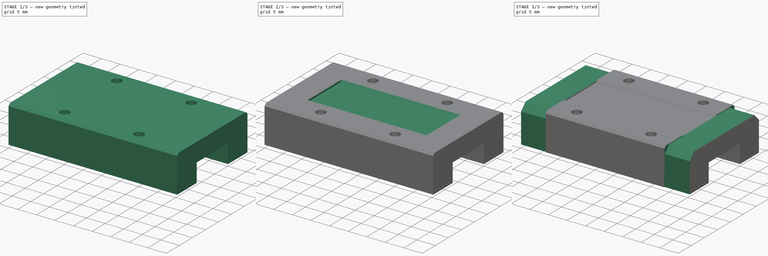
[diagram: build sequence overview — one tinted view per stage of 3, left to right]
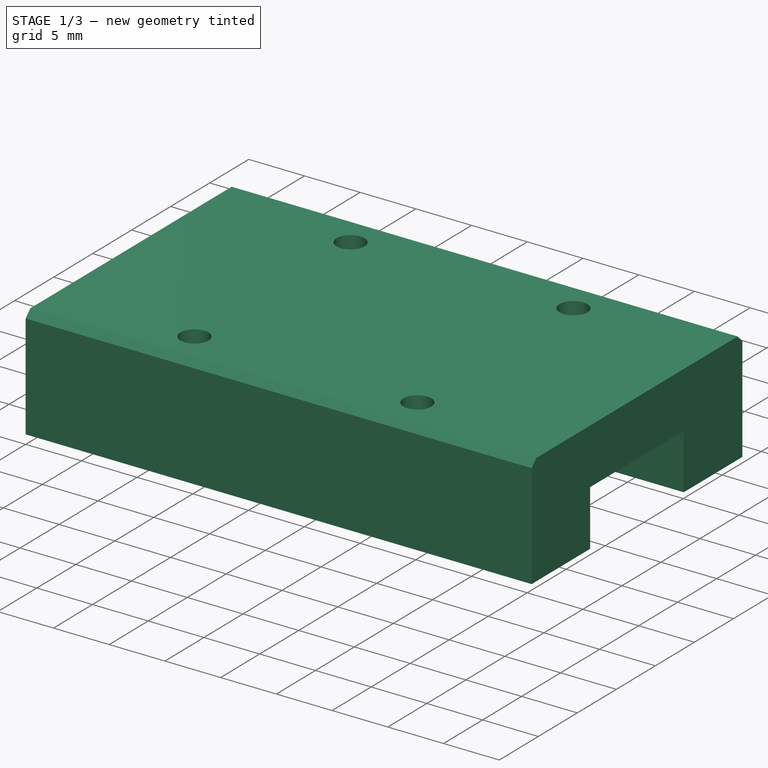
[diagram: stage 1 of 3 — iso view after this stage's code; geometry added in this stage tinted green]
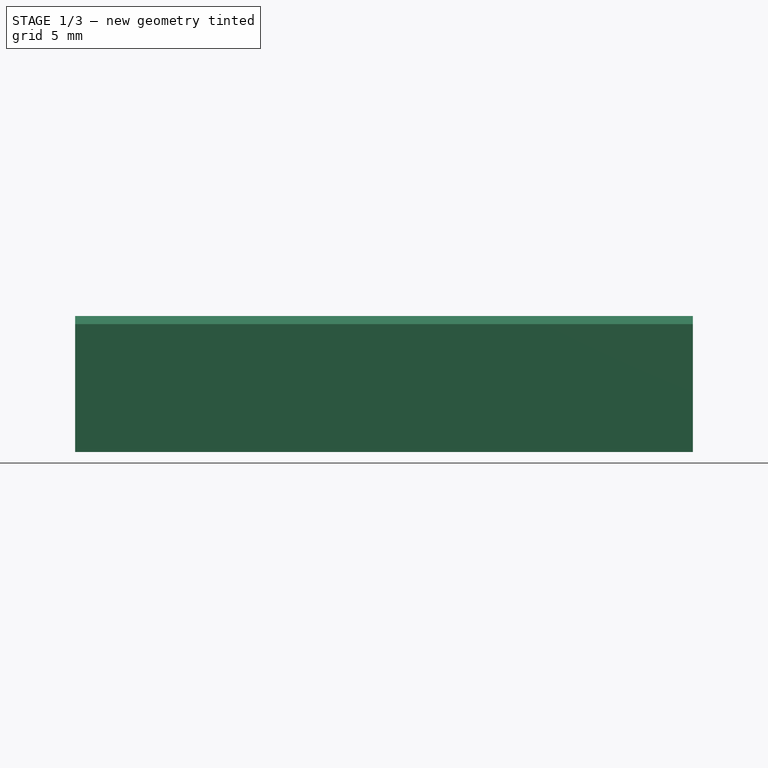
[diagram: stage 1 of 3 — front view after this stage's code; geometry added in this stage tinted green]
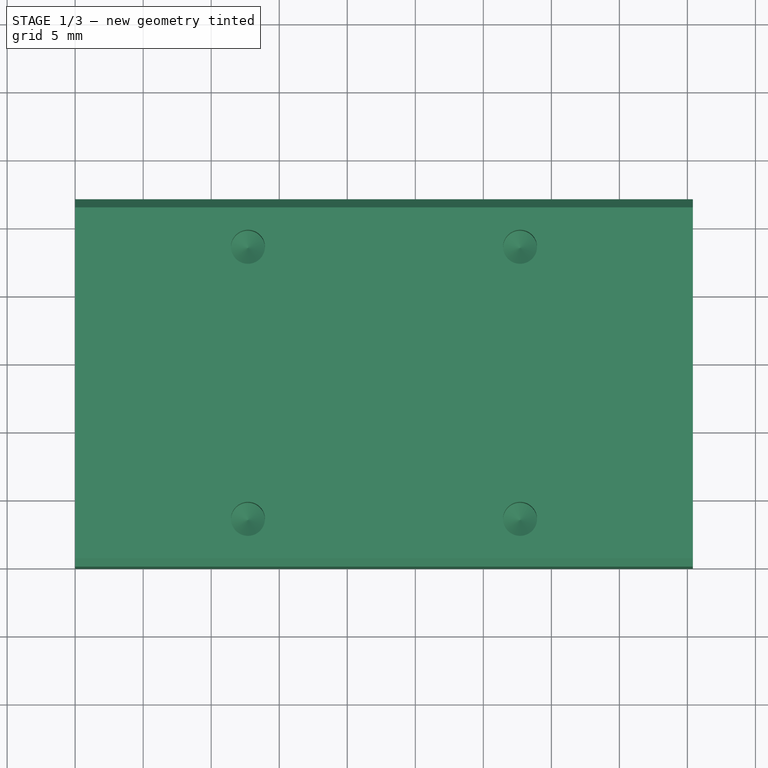
[diagram: stage 1 of 3 — top view after this stage's code; geometry added in this stage tinted green]
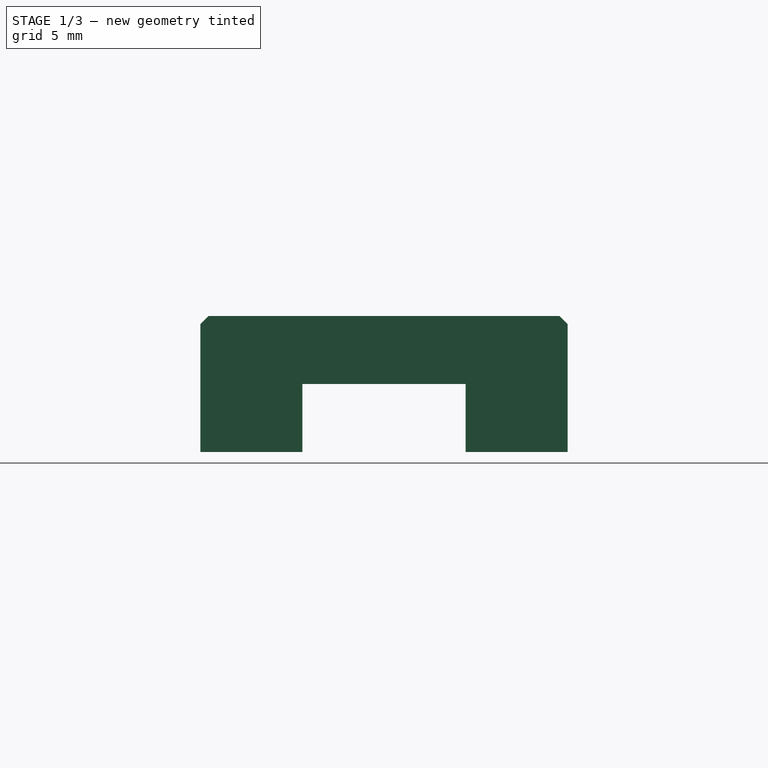
[diagram: stage 1 of 3 — right view after this stage's code; geometry added in this stage tinted green]
FCSTD DOCUMENT  (FreeCAD 0.18R4 (GitTag))
Label: Block MGN12H
License: All rights reserved
LicenseURL: http://en.wikipedia.org/wiki/All_rights_reserved
objects: Sketcher::SketchObject×4, PartDesign::Pocket×2, PartDesign::Pad×1, PartDesign::Hole×1, PartDesign::Chamfer×1, PartDesign::Point×1, PartDesign::Plane×1, PartDesign::Mirrored×1, PartDesign::Body×1
note: 17 computed .brp shape members not serialized (recipe doc carries the construction recipe); baked Part::Feature solids carry a one-line shape summary decoded from their .brp

FEATURE [Sketcher::SketchObject] Sketch
  MapMode = 5
  Placement = pos=(0,0,0) rot=(0.57735,0.57735,0.57735;2.0944rad)
  Support = -> [YZ_Plane]
  sketch-geometry (10):
    g0: LineSegment StartX=0 StartY=0 StartZ=0 EndX=0 EndY=9.4 EndZ=0
    g1: LineSegment StartX=0 StartY=9.4 StartZ=0 EndX=0.6 EndY=10 EndZ=0
    g2: LineSegment StartX=0.6 StartY=10 StartZ=0 EndX=26.4 EndY=10 EndZ=0
    g3: LineSegment StartX=26.4 StartY=10 StartZ=0 EndX=27 EndY=9.4 EndZ=0
    g4: LineSegment StartX=27 StartY=9.4 StartZ=0 EndX=27 EndY=0 EndZ=0
    g5: LineSegment StartX=0 StartY=0 StartZ=0 EndX=7.5 EndY=0 EndZ=0
    g6: LineSegment StartX=7.5 StartY=0 StartZ=0 EndX=7.5 EndY=5 EndZ=0
    g7: LineSegment StartX=7.5 StartY=5 StartZ=0 EndX=19.5 EndY=5 EndZ=0
    g8: LineSegment StartX=27 StartY=0 StartZ=0 EndX=19.5 EndY=0 EndZ=0
    g9: LineSegment StartX=19.5 StartY=0 StartZ=0 EndX=19.5 EndY=5 EndZ=0
  constraints (29):
    c: Coincident(g-1,g0)
    c: PointOnObject(g0,g-2)
    c: Coincident(g0,g1)
    c: Coincident(g1,g2)
    c: Horizontal(g2)
    c: Coincident(g2,g3)
    c: Coincident(g3,g4)
    c: PointOnObject(g4,g-1)
    c: Vertical(g4)
    c: Coincident(g-1,g5)
    c: Horizontal(g5)
    c: Coincident(g5,g6)
    c: Vertical(g6)
    c: Coincident(g6,g7)
    c: Horizontal(g7)
    c: Coincident(g4,g8)
    c: PointOnObject(g8,g-1)
    c: Coincident(g8,g9)
    c: Coincident(g9,g7)
    c: Vertical(g9)
    c: Angle(g5,g1) = 0.785398
    c: Perpendicular(g3,g1)
    c: Distance(g-1,g4) = 27
    c: Distance(g3,g2) = 0.6
    c: Distance(g-1,g2) = 10
    c: Distance(g5) = 7.5
    c: Distance(g8) = 7.5
    c: Horizontal(g3,g0)
    c: Distance(g6) = 5
FEATURE [PartDesign::Pad] Pad
  Length = 45.4
  Length2 = 100
  Placement = pos=(0,0,0) rot=(0.57735,0.57735,0.57735;2.0944rad)
  Profile = -> Sketch
  Type = 0
FEATURE [Sketcher::SketchObject] Sketch001
  ExternalGeometry = -> [Pad]
  MapMode = 5
  Placement = pos=(-2.8e-15,4.4e-15,10) rot=(0,0,-1;1.5708rad)
  Support = -> [Pad]
  sketch-geometry (9):
    g0: Circle CenterX=-23.5 CenterY=32.7 CenterZ=0 NormalX=0 NormalY=0 NormalZ=1 AngleXU=0 Radius=1.5
    g1: Circle CenterX=-3.5 CenterY=32.7 CenterZ=0 NormalX=0 NormalY=0 NormalZ=1 AngleXU=0 Radius=1.5
    g2: Circle CenterX=-3.5 CenterY=12.7 CenterZ=0 NormalX=0 NormalY=0 NormalZ=1 AngleXU=0 Radius=1.5
    g3: Circle CenterX=-23.5 CenterY=12.7 CenterZ=0 NormalX=0 NormalY=0 NormalZ=1 AngleXU=0 Radius=1.5
    g4: LineSegment [constr] StartX=-23.5 StartY=32.7 StartZ=0 EndX=-3.5 EndY=12.7 EndZ=0
    g5: LineSegment [constr] StartX=-3.5 StartY=32.7 StartZ=0 EndX=-23.5 EndY=12.7 EndZ=0
    g6: LineSegment [constr] StartX=-27 StartY=45.4 StartZ=0 EndX=0 EndY=0 EndZ=0
    g7: LineSegment [constr] StartX=0 StartY=45.4 StartZ=0 EndX=-27 EndY=0 EndZ=0
    g8: GeomPoint X=-13.5 Y=22.7 Z=0
  constraints (22):
    c: Horizontal(g2,g3)
    c: Horizontal(g1,g0)
    c: Vertical(g1,g2)
    c: Vertical(g0,g3)
    c: Radius(g2) = 1.5
    c: Equal(g2,g3)
    c: Equal(g3,g0)
    c: Equal(g0,g1)
    c: Distance(g2,g3) = 20
    c: Distance(g3,g0) = 20
    c: Coincident(g4,g0)
    c: Coincident(g4,g2)
    c: Coincident(g5,g1)
    c: Coincident(g5,g3)
    c: Coincident(g6,g-3)
    c: Coincident(g6,g-1)
    c: Coincident(g7,g-4)
    c: Coincident(g7,g-3)
    c: PointOnObject(g8,g7)
    c: PointOnObject(g8,g5)
    c: PointOnObject(g8,g6)
    c: PointOnObject(g8,g4)
FEATURE [PartDesign::Hole] Hole
  BaseFeature = -> Pad
  Depth = 4.8
  DepthType = 0
  Diameter = 2.5
  DrillPoint = 1
  DrillPointAngle = 118
  HoleCutCountersinkAngle = 90
  HoleCutDepth = 0
  HoleCutDiameter = 3
  HoleCutType = 0
  ModelActualThread = false
  Placement = pos=(0,0,0) rot=(0.57735,0.57735,0.57735;2.0944rad)
  Profile = -> Sketch001
  Tapered = false
  TaperedAngle = 90
  ThreadAngle = 60
  ThreadClass = 0
  ThreadCutOffInner = 0.0541266
  ThreadCutOffOuter = 0.108253
  ThreadDirection = 1
  ThreadFit = 0
  ThreadPitch = 0.5
  ThreadSize = 3
  ThreadType = 1
  Threaded = true
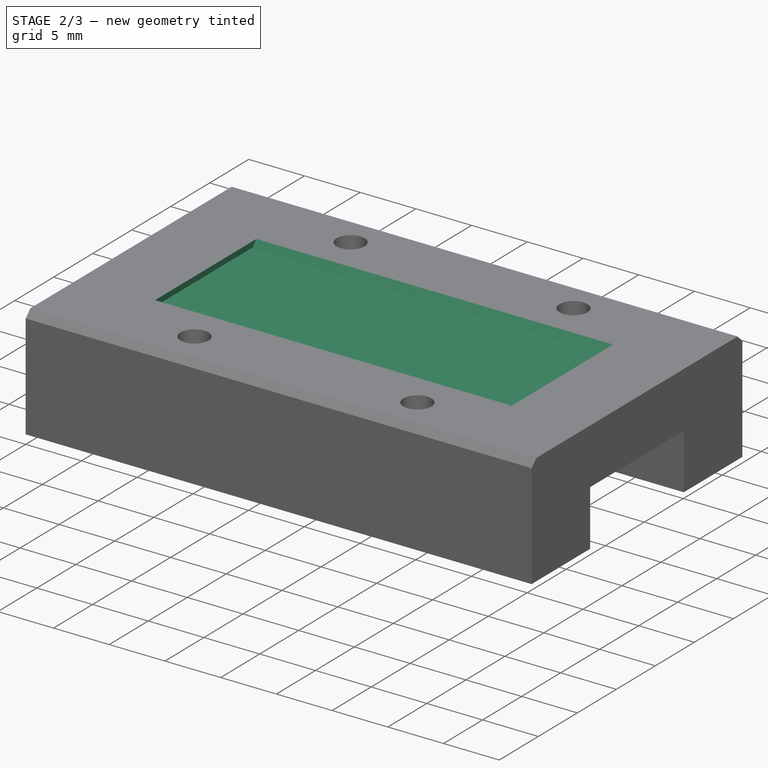
[diagram: stage 2 of 3 — iso view after this stage's code; geometry added in this stage tinted green]
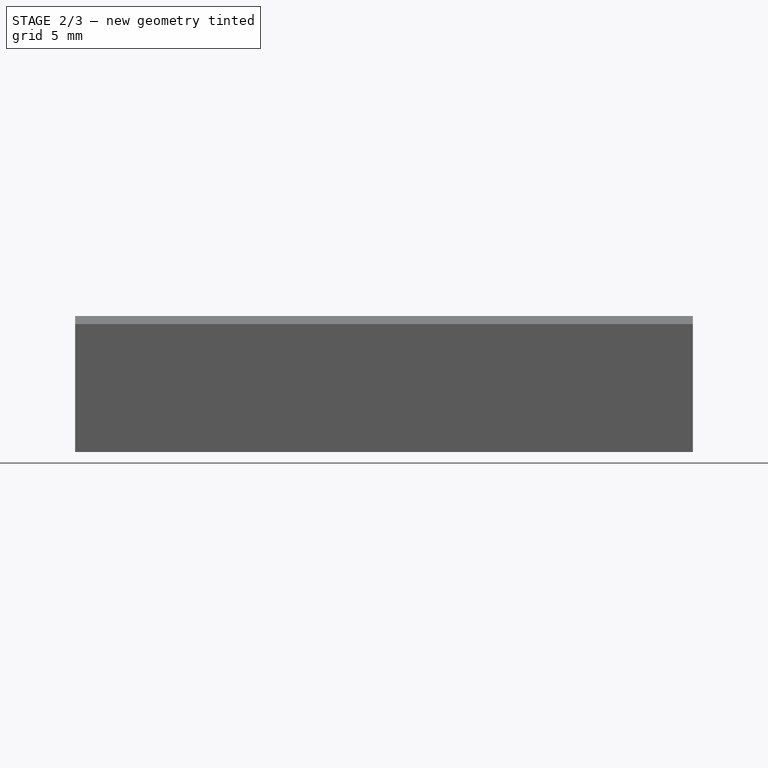
[diagram: stage 2 of 3 — front view after this stage's code; geometry added in this stage tinted green]
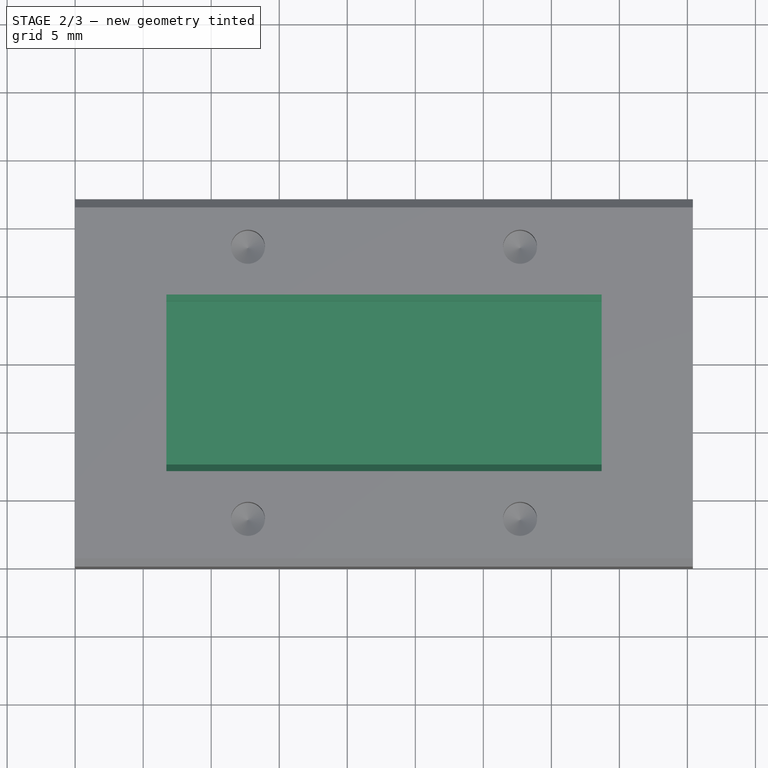
[diagram: stage 2 of 3 — top view after this stage's code; geometry added in this stage tinted green]
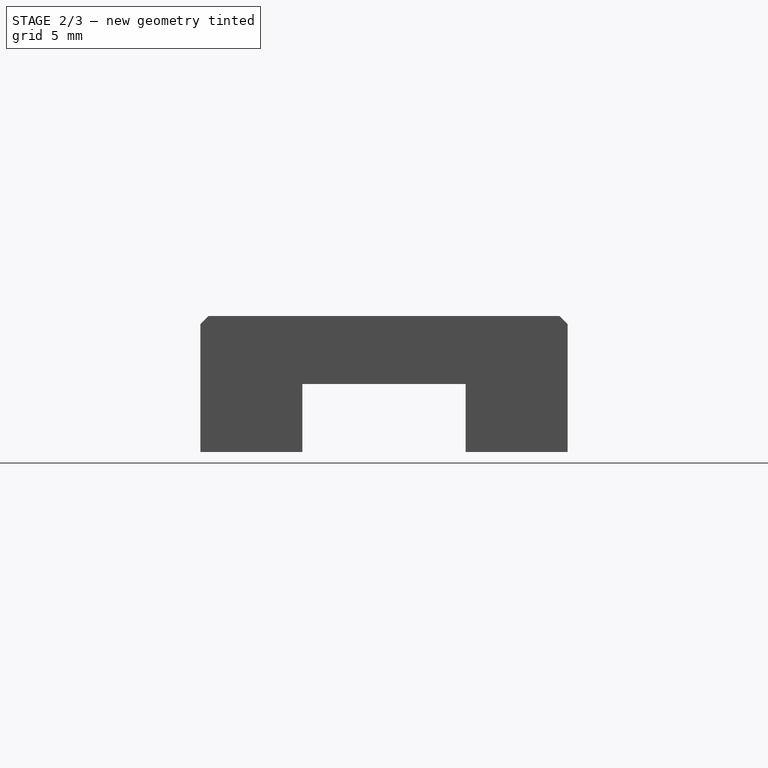
[diagram: stage 2 of 3 — right view after this stage's code; geometry added in this stage tinted green]
FEATURE [Sketcher::SketchObject] Sketch002
  ExternalGeometry = -> [Hole]
  MapMode = 5
  Placement = pos=(-2.8e-15,4.4e-15,10) rot=(0,0,-1;1.5708rad)
  Support = -> [Hole]
  sketch-geometry (8):
    g0: LineSegment StartX=-19.5 StartY=38.7 StartZ=0 EndX=-7.5 EndY=38.7 EndZ=0
    g1: LineSegment StartX=-7.5 StartY=38.7 StartZ=0 EndX=-7.5 EndY=6.7 EndZ=0
    g2: LineSegment StartX=-7.5 StartY=6.7 StartZ=0 EndX=-19.5 EndY=6.7 EndZ=0
    g3: LineSegment StartX=-19.5 StartY=6.7 StartZ=0 EndX=-19.5 EndY=38.7 EndZ=0
    g4: LineSegment [constr] StartX=-19.5 StartY=38.7 StartZ=0 EndX=-27 EndY=38.7 EndZ=0
    g5: LineSegment [constr] StartX=-19.5 StartY=38.7 StartZ=0 EndX=-19.5 EndY=45.4 EndZ=0
    g6: LineSegment [constr] StartX=-7.5 StartY=6.7 StartZ=0 EndX=-7.5 EndY=0 EndZ=0
    g7: LineSegment [constr] StartX=-7.5 StartY=6.7 StartZ=0 EndX=0 EndY=6.7 EndZ=0
  constraints (24):
    c: Coincident(g0,g1)
    c: Coincident(g1,g2)
    c: Coincident(g2,g3)
    c: Coincident(g3,g0)
    c: Horizontal(g0)
    c: Horizontal(g2)
    c: Vertical(g1)
    c: Vertical(g3)
    c: Distance(g1) = 32
    c: Distance(g2) = 12
    c: Coincident(g4,g0)
    c: PointOnObject(g4,g-3)
    c: Horizontal(g4)
    c: Coincident(g5,g0)
    c: PointOnObject(g5,g-4)
    c: Vertical(g5)
    c: Coincident(g6,g1)
    c: PointOnObject(g6,g-1)
    c: Vertical(g6)
    c: Coincident(g7,g1)
    c: PointOnObject(g7,g-2)
    c: Horizontal(g7)
    c: Equal(g6,g5)
    c: Equal(g7,g4)
FEATURE [PartDesign::Pocket] Pocket
  BaseFeature = -> Hole
  Length = 0.5
  Length2 = 100
  Placement = pos=(0,0,0) rot=(0.57735,0.57735,0.57735;2.0944rad)
  Profile = -> Sketch002
  Type = 0
FEATURE [PartDesign::Chamfer] Chamfer
  Base = -> Pocket [Edge31,Edge29]
  BaseFeature = -> Pocket
  Placement = pos=(0,0,0) rot=(0.57735,0.57735,0.57735;2.0944rad)
  Size = 0.49
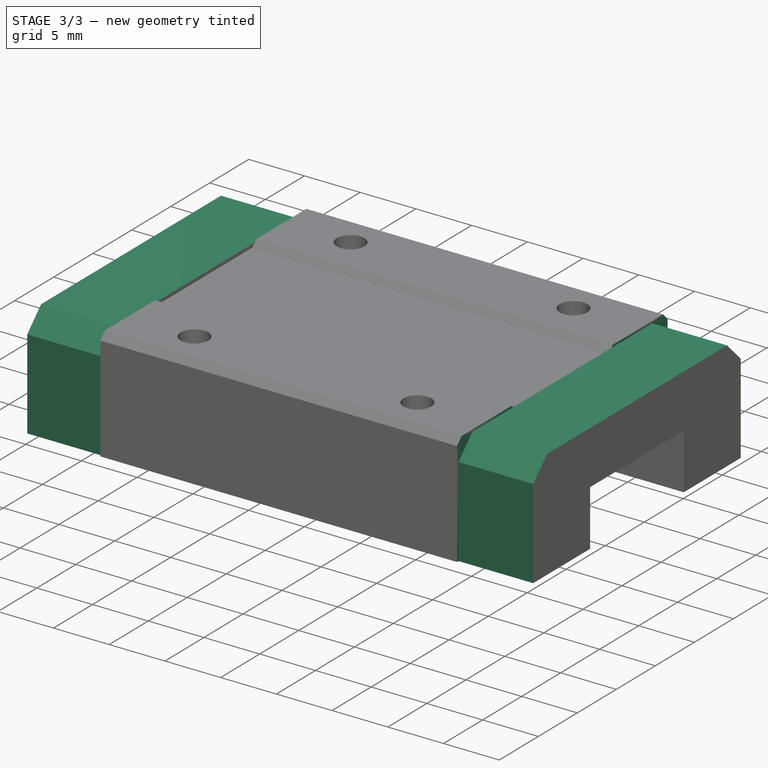
[diagram: stage 3 of 3 — iso view after this stage's code; geometry added in this stage tinted green]
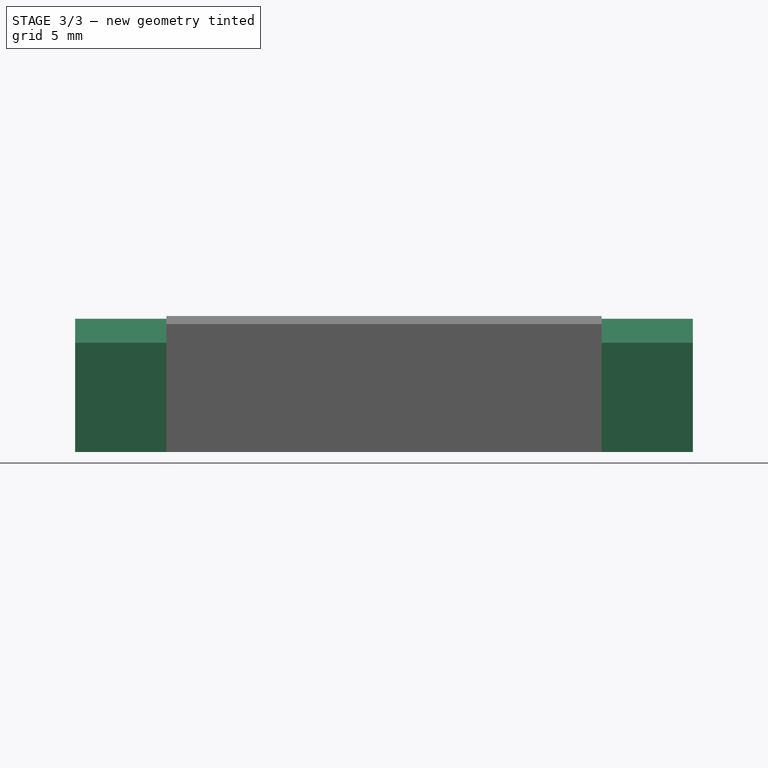
[diagram: stage 3 of 3 — front view after this stage's code; geometry added in this stage tinted green]
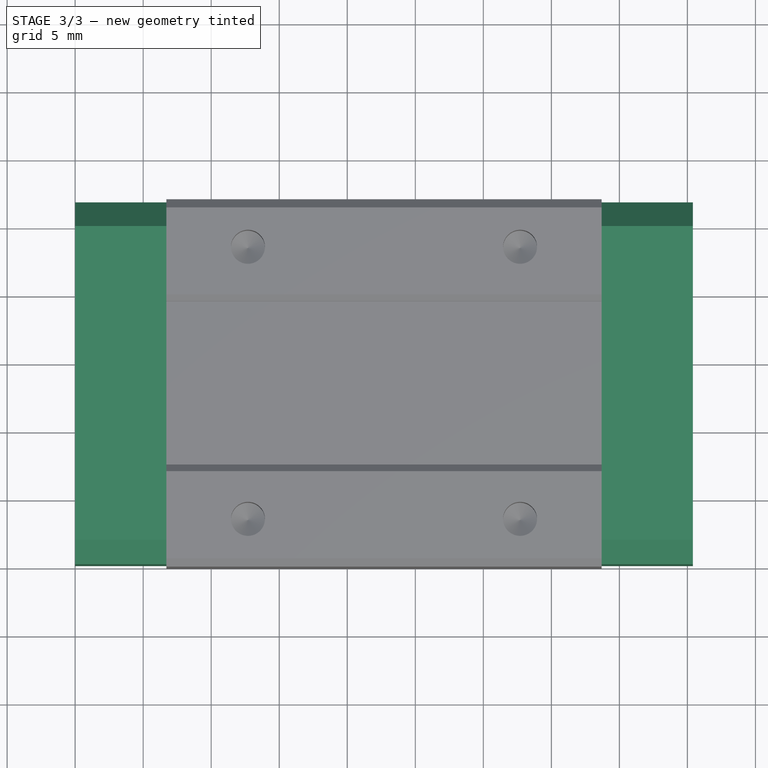
[diagram: stage 3 of 3 — top view after this stage's code; geometry added in this stage tinted green]
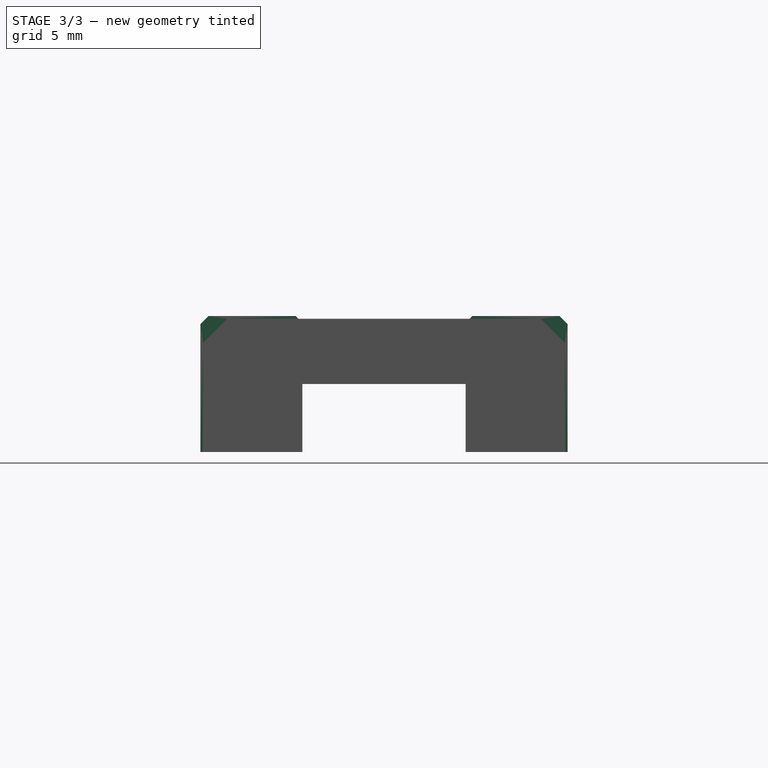
[diagram: stage 3 of 3 — right view after this stage's code; geometry added in this stage tinted green]
FEATURE [Sketcher::SketchObject] Sketch003
  ExternalGeometry = -> [Chamfer]
  MapMode = 5
  Placement = pos=(45.4,-1e-14,1e-14) rot=(0.57735,0.57735,0.57735;2.0944rad)
  Support = -> [Chamfer]
  sketch-geometry (13):
    g0: LineSegment StartX=0 StartY=0 StartZ=0 EndX=0.2 EndY=0 EndZ=0
    g1: LineSegment StartX=0.2 StartY=0 StartZ=0 EndX=0.2 EndY=8.03223 EndZ=0
    g2: LineSegment StartX=0.2 StartY=8.03223 StartZ=0 EndX=1.96777 EndY=9.8 EndZ=0
    g3: LineSegment StartX=1.96777 StartY=9.8 StartZ=0 EndX=25.0322 EndY=9.8 EndZ=0
    g4: LineSegment StartX=25.0322 StartY=9.8 StartZ=0 EndX=26.8 EndY=8.03223 EndZ=0
    g5: LineSegment StartX=26.8 StartY=8.03223 StartZ=0 EndX=26.8 EndY=0 EndZ=0
    g6: LineSegment StartX=26.8 StartY=0 StartZ=0 EndX=27 EndY=3.6e-15 EndZ=0
    g7: LineSegment StartX=27 StartY=3.6e-15 StartZ=0 EndX=27 EndY=9.4 EndZ=0
    g8: LineSegment StartX=27 StartY=9.4 StartZ=0 EndX=26.4 EndY=10 EndZ=0
    g9: LineSegment StartX=26.4 StartY=10 StartZ=0 EndX=0.6 EndY=10 EndZ=0
    g10: LineSegment StartX=0.6 StartY=10 StartZ=0 EndX=-9e-15 EndY=9.4 EndZ=0
    g11: LineSegment StartX=-9e-15 StartY=9.4 StartZ=0 EndX=0 EndY=0 EndZ=0
    g12: LineSegment [constr] StartX=1.96777 StartY=9.8 StartZ=0 EndX=1.96777 EndY=10 EndZ=0
  constraints (33):
    c: Coincident(g-1,g0)
    c: PointOnObject(g0,g-1)
    c: Coincident(g0,g1)
    c: Vertical(g1)
    c: Coincident(g1,g2)
    c: Coincident(g2,g3)
    c: Horizontal(g3)
    c: Coincident(g3,g4)
    c: Coincident(g4,g5)
    c: PointOnObject(g5,g-1)
    c: Vertical(g5)
    c: Coincident(g5,g6)
    c: Coincident(g6,g-5)
    c: Coincident(g6,g7)
    c: Coincident(g7,g-5)
    c: Coincident(g7,g8)
    c: Coincident(g8,g-3)
    c: Coincident(g8,g9)
    c: Coincident(g9,g-3)
    c: Coincident(g9,g10)
    c: Coincident(g10,g-4)
    c: Coincident(g10,g11)
    c: Coincident(g11,g0)
    c: Coincident(g12,g2)
    c: PointOnObject(g12,g9)
    c: Vertical(g12)
    c: Equal(g12,g0)
    c: Equal(g0,g6)
    c: Horizontal(g4,g1)
    c: Distance(g0) = 0.2
    c: Angle(g1,g2) = 2.35619
    c: Equal(g4,g2)
    c: Distance(g2) = 2.5
FEATURE [PartDesign::Pocket] Pocket001
  BaseFeature = -> Chamfer
  Length = 0
  Length2 = 100
  Placement = pos=(0,0,0) rot=(0.57735,0.57735,0.57735;2.0944rad)
  Profile = -> Sketch003
  Type = 3
  UpToFace = -> Chamfer [Face2]
FEATURE [PartDesign::Point] DatumPoint
  AttacherType = Attacher::AttachEnginePoint
  MapMode = 37
  Placement = pos=(22.7,13.5,9.5) rot=(0,0,1;0rad)
  Support = -> [Pocket001]
FEATURE [PartDesign::Plane] DatumPlane
  Length = 25.4406
  MapMode = 6
  Placement = pos=(22.7,13.5,9.5) rot=(0,-1,0;1.5708rad)
  ResizeMode = 0
  Support = -> [DatumPoint,Pocket001]
  Width = 42.4406
FEATURE [PartDesign::Mirrored] Mirrored
  BaseFeature = -> Pocket001
  MirrorPlane = -> DatumPlane
  Originals = -> [Pocket001]
  Placement = pos=(0,0,0) rot=(0.57735,0.57735,0.57735;2.0944rad)
FEATURE [PartDesign::Body] Body
  Group = -> [Sketch,Pad,Sketch001,Hole,Sketch002,Pocket,Chamfer,Sketch003,Pocket001,DatumPoint,DatumPlane,Mirrored]
  Origin = -> Origin
  Tip = -> Mirrored
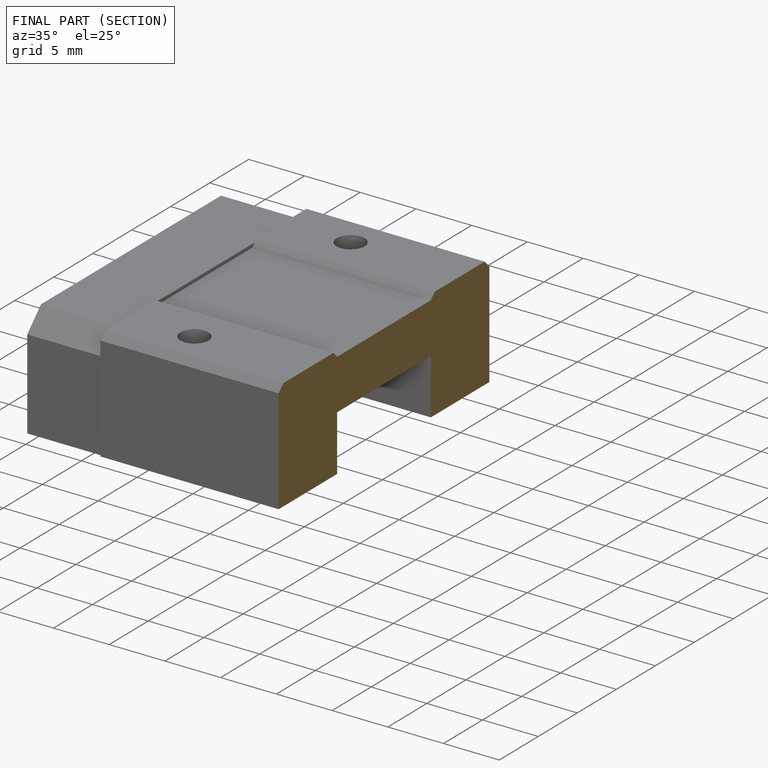
[diagram: finished part — half-section view (interior)]
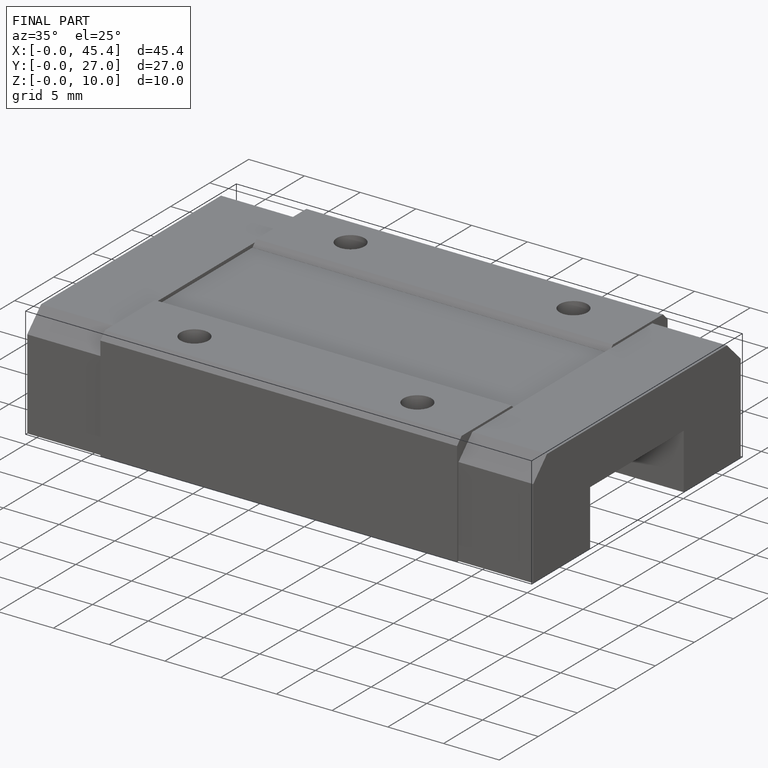
[diagram: finished part — iso view with bounding-box wireframe]
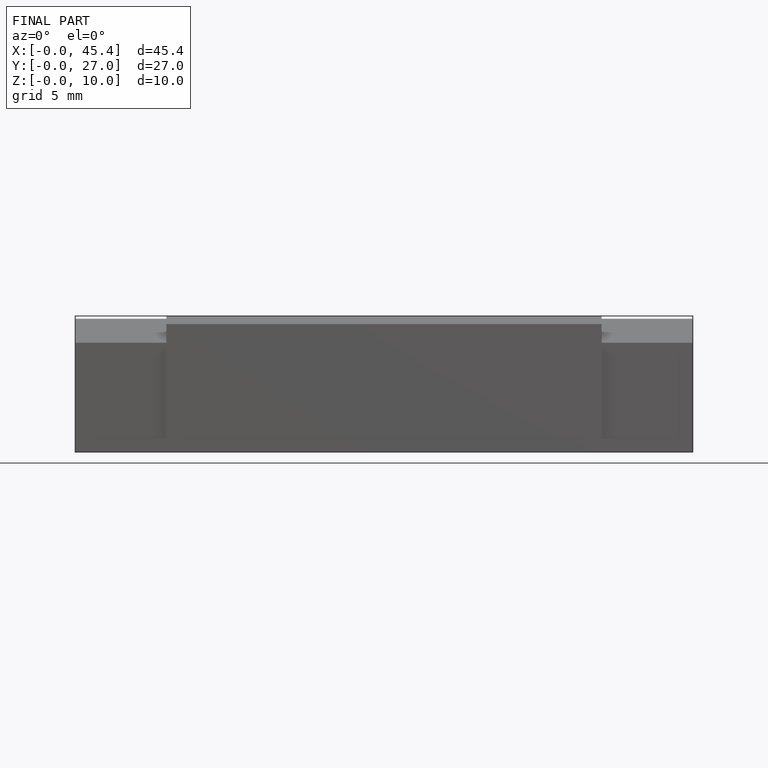
[diagram: finished part — front view with bounding-box wireframe]
